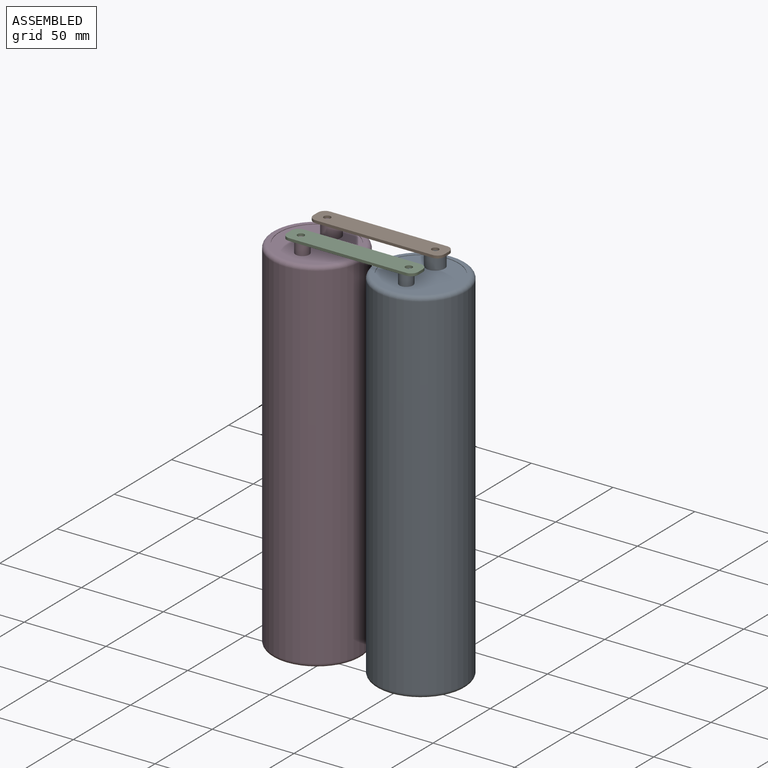
[diagram: assembled view]
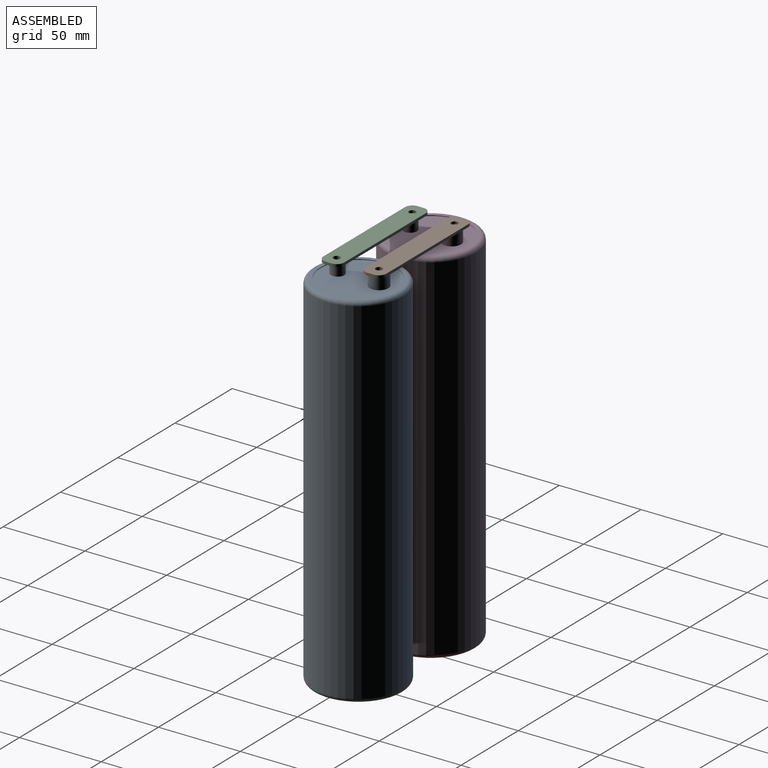
[diagram: assembled view, second angle]
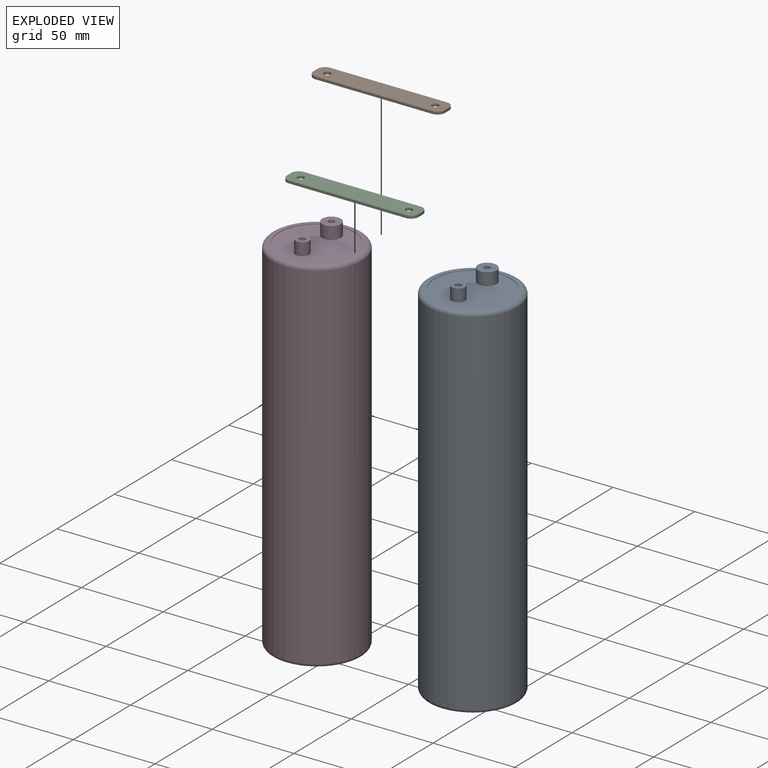
[diagram: exploded view]
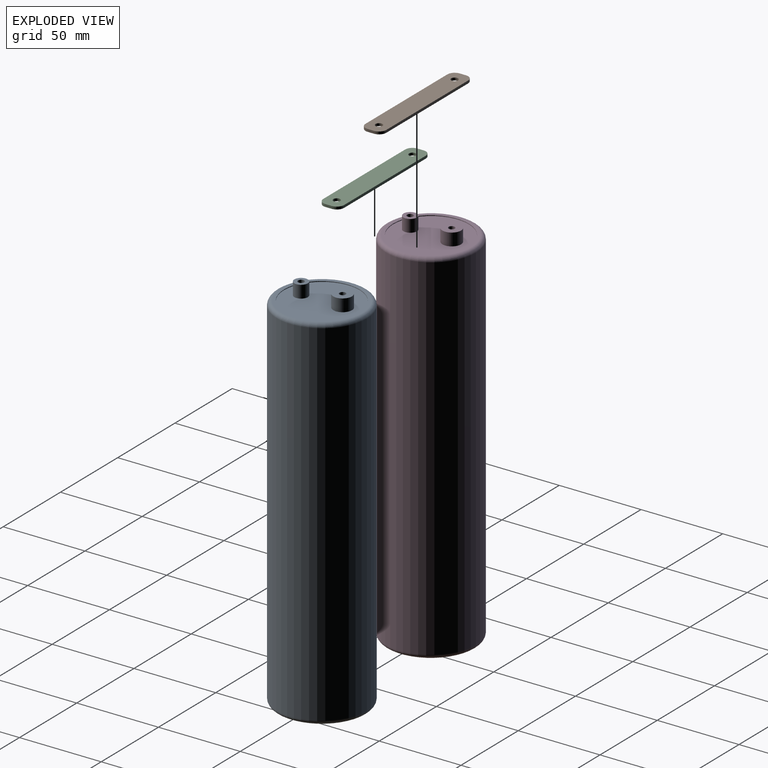
[diagram: exploded view, second angle]
ASSEMBLY  parts=4 mates=2
PART A: 17 faces, bbox 59.5x59.5x229.2 mm
  f0: cylinder r=27.5mm len=216.92mm, axis (0,0,-1), area 37481.1mm2, adj f5,f6
  f1: plane 49.92x49.92mm, normal (0,0,1), area 277.9mm2, adj f6,f7
  f2: plane 49.92x49.92mm, normal (0,0,-1), area 277.9mm2, adj f3,f5
  f3: cylinder r=23.12mm len=46.24mm, axis (0,0,-1), area 55.3mm2, adj f2,f4
  f4: plane 46.24x46.24mm, normal (0,0,-1), area 1679.3mm2, adj f3
  f5: torus R=24.96mm, axis (0,0,1), area 666.3mm2, adj f0,f2
  f6: torus R=24.96mm, axis (0,0,1), area 666.3mm2, adj f0,f1
  f7: cylinder r=23.12mm len=46.24mm, axis (0,0,1), area 55.3mm2, adj f1,f8
  f8: plane 46.24x46.24mm, normal (0,0,1), area 1523.2mm2, adj f7,f10,f14
  f9: cylinder r=1.91mm len=7.62mm, axis (0,0,-1), area 91.2mm2, adj f11,f12
  f10: cylinder r=5.71mm len=11.43mm, axis (0,0,-1), area 273.6mm2, adj f8,f11
  f11: plane 11.43x11.43mm, normal (0,0,1), area 91.2mm2, adj f9,f10
  f12: plane 3.81x3.81mm, normal (0,0,1), area 11.4mm2, adj f9
  f13: cylinder r=1.91mm len=7.62mm, axis (0,0,-1), area 91.2mm2, adj f15,f16
  f14: cylinder r=4.13mm len=8.26mm, axis (0,0,-1), area 197.6mm2, adj f8,f15
  f15: plane 8.26x8.26mm, normal (0,0,1), area 42.1mm2, adj f13,f14
  f16: plane 3.81x3.81mm, normal (0,0,1), area 11.4mm2, adj f13
PART B: 12 faces, bbox 80.4x12.7x1.6 mm
  f0: plane 71.5x1.59mm, normal (0,-1,0), area 113.5mm2, adj f6,f7,f8,f11
  f1: plane 3.81x1.59mm, normal (1,0,0), area 6mm2, adj f6,f7,f8,f9
  f2: plane 71.5x1.59mm, normal (0,1,0), area 113.5mm2, adj f6,f7,f9,f10
  f3: cylinder r=2.1mm len=4.19mm, axis (0,0,-1), area 20.9mm2, adj f6,f7
  f4: cylinder r=2.1mm len=4.19mm, axis (0,0,-1), area 20.9mm2, adj f6,f7
  f5: plane 3.81x1.59mm, normal (-1,0,0), area 6mm2, adj f6,f7,f10,f11
  f6: plane 80.39x12.7mm, normal (0,0,1), area 976.4mm2, adj f0,f1,f2,f3,f4,f5,f8,f9
  f7: plane 80.39x12.7mm, normal (0,0,-1), area 976.4mm2, adj f0,f1,f2,f3,f4,f5,f8,f9
  f8: cylinder r=4.45mm len=4.45mm, axis (0,0,1), area 11.1mm2, adj f0,f1,f6,f7
  f9: cylinder r=4.45mm len=4.45mm, axis (0,0,-1), area 11.1mm2, adj f1,f2,f6,f7
  f10: cylinder r=4.45mm len=4.45mm, axis (0,0,1), area 11.1mm2, adj f2,f5,f6,f7
  f11: cylinder r=4.45mm len=4.45mm, axis (0,0,-1), area 11.1mm2, adj f0,f5,f6,f7
PART C: same geometry as B
PART D: same geometry as A
PLACE A rot(axis=(0,0,-1),90deg) t=(254,54.99,-0.35)mm
PLACE B t=(220.98,67.69,228.89)mm
PLACE C t=(222.25,42.76,228.89)mm
PLACE D rot(axis=(0,0,-1),90deg) t=(190.5,54.99,-0.35)mm
MATE planar C.f7 <-> A.f14  axis (0,0,-1) through (222.25,42.76,228.89)mm
MATE cylindrical B.f4 <-> A.f9  axis (0,0,-1) through (254,67.69,229.68)mm
